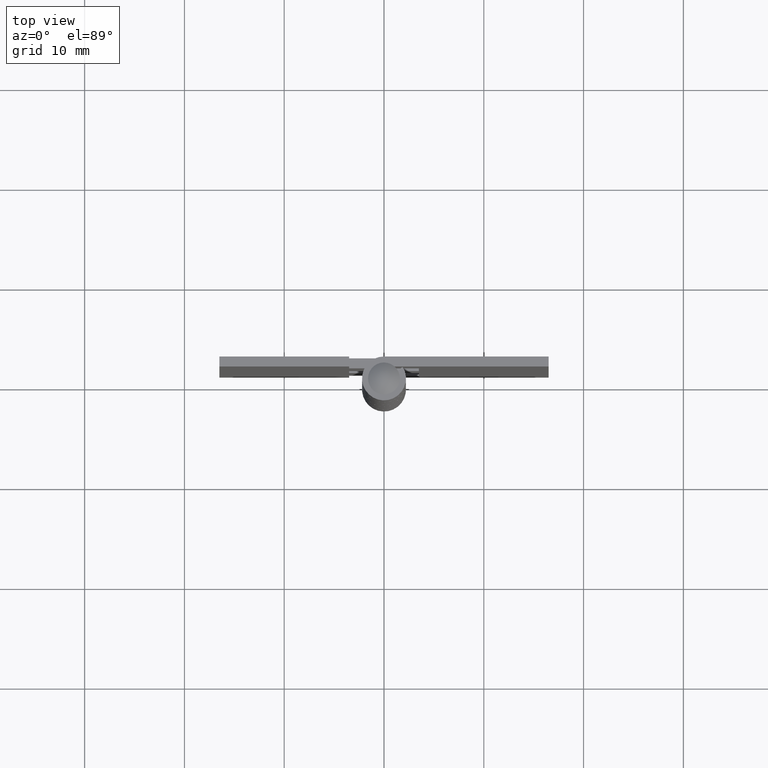
[diagram: clean part render]
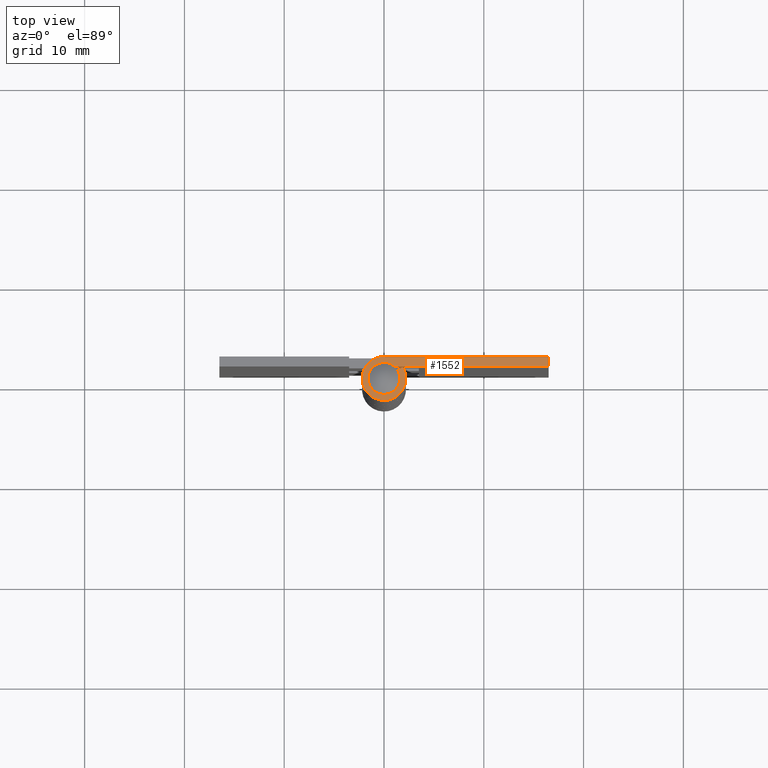
[diagram: same view with one face highlighted and labeled with its STEP entity id]
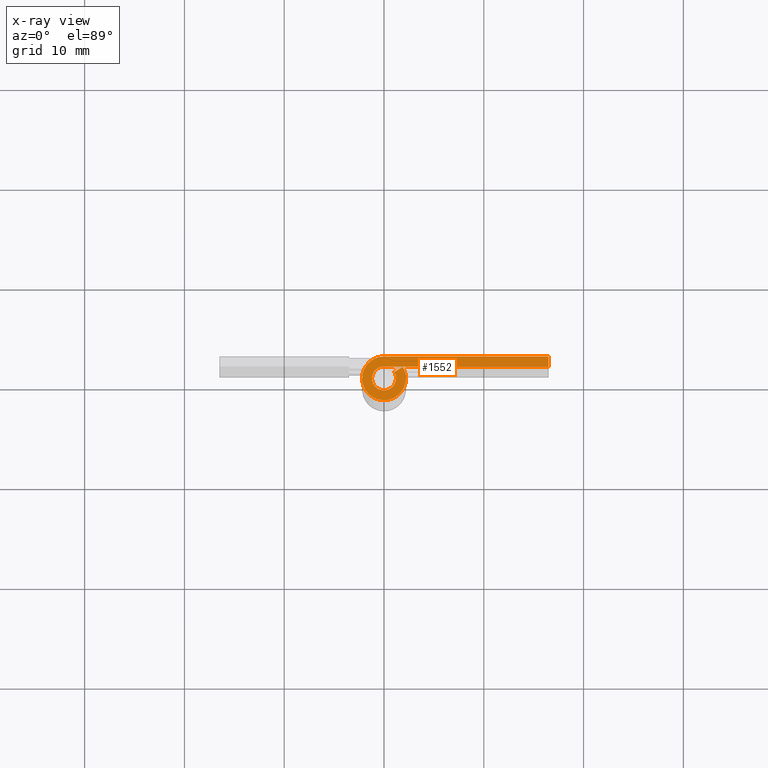
[diagram: x-ray of the same camera — body ghosted, the highlighted face saturated]
A machine part, top view. The second image highlights one B-rep face of the part: STEP entity #1552.
The next image is the same camera in x-ray: the body ghosted, the highlighted face saturated — about 0% of this face is hidden behind the body in this view.
In plain terms, the highlighted face is a freeform B-spline surface patch.
Its self-contained STEP definition (entity closure, byte-faithful):
#854=CARTESIAN_POINT('',(1.875497693946860,1.149996000000000,64.0));
#855=VERTEX_POINT('',#854);
#870=CARTESIAN_POINT('',(1.022997192151920,0.627269595042898,64.0));
#871=VERTEX_POINT('',#870);
#877=CARTESIAN_POINT('',(1.022997192151920,0.627269595042898,64.0));
#878=CARTESIAN_POINT('',(1.875497693946860,1.149996000000000,64.0));
#879=QUASI_UNIFORM_CURVE('',1,(#877,#878),.UNSPECIFIED.,.F.,.U.);
#880=EDGE_CURVE('',#871,#855,#879,.T.);
#936=CARTESIAN_POINT('',(1.421085E-014,1.199996000000000,64.0));
#937=VERTEX_POINT('',#936);
#943=CARTESIAN_POINT('',(1.022997192151920,0.627269595042898,64.0));
#944=CARTESIAN_POINT('',(1.096156771381883,0.508155094951411,63.999999999999837));
#945=CARTESIAN_POINT('',(1.187805576908185,0.275072082743146,64.000000000000369));
#946=CARTESIAN_POINT('',(1.208883311766687,-0.039475491737728,63.999999999999702));
#947=CARTESIAN_POINT('',(1.167270023603000,-0.316912113220982,64.000000000000142));
#948=CARTESIAN_POINT('',(1.069627532268047,-0.572685032831658,64.000000000000142));
#949=CARTESIAN_POINT('',(0.915205306591335,-0.788182682445386,63.999999999999652));
#950=CARTESIAN_POINT('',(0.716875539522696,-0.974395377356563,64.000000000000384));
#951=CARTESIAN_POINT('',(0.488602416994576,-1.110631500910100,63.999999999999829));
#952=CARTESIAN_POINT('',(0.226199171306221,-1.186334237589020,64.000000000000057));
#953=CARTESIAN_POINT('',(-0.020400298146820,-1.207522406579411,64.000000000000014));
#954=CARTESIAN_POINT('',(-0.316555130062991,-1.175070355569604,63.999999999999787));
#955=CARTESIAN_POINT('',(-0.616753139060748,-1.049074522507568,64.000000000001165));
#956=CARTESIAN_POINT('',(-0.866635581712340,-0.844798189931669,63.999999999999041));
#957=CARTESIAN_POINT('',(-1.018758293768180,-0.648606501487406,64.000000000002004));
#958=CARTESIAN_POINT('',(-1.129595279087340,-0.427293427957465,63.999999999996582));
#959=CARTESIAN_POINT('',(-1.199999443646807,-0.172007940153021,64.000000000002416));
#960=CARTESIAN_POINT('',(-1.205919235928050,0.093388737199175,64.000000000007574));
#961=CARTESIAN_POINT('',(-1.155129795408018,0.352466068525364,63.999999999991921));
#962=CARTESIAN_POINT('',(-1.064176308236990,0.574534360286789,64.000000000003752));
#963=CARTESIAN_POINT('',(-0.913797790199619,0.792157316176894,63.999999999998998));
#964=CARTESIAN_POINT('',(-0.720096800562546,0.972729200345032,64.000000000000256));
#965=CARTESIAN_POINT('',(-0.419208547924002,1.146750614106223,63.999999999999851));
#966=CARTESIAN_POINT('',(-0.164487641524548,1.200189736397713,64.000000000000028));
#967=CARTESIAN_POINT('',(1.421085E-014,1.199996000000000,64.0));
#968=B_SPLINE_CURVE_WITH_KNOTS('',3,(#943,#944,#945,#946,#947,#948,#949,#950,#951,#952,#953,#954,#955,#956,#957,#958,#959,#960,#961,#962,#963,#964,#965,#966,#967),.UNSPECIFIED.,.F.,.U.,(4,1,1,1,1,1,1,1,1,1,1,1,1,1,1,1,1,1,1,1,1,1,4),(0.000000570146701,0.419335557465189,0.740041935715889,0.937395087052613,1.258095772191076,1.554112917424398,1.726729917299559,2.072112444319653,2.343460705547838,2.540815667449512,2.812161094361293,3.231486842129256,3.502851555832059,3.774196982630623,3.971551944543392,4.242900205700580,4.563591361680024,4.760896847566676,5.032247202401107,5.278941775790335,5.550304801822872,5.821653062997812,6.315012039604608),.UNSPECIFIED.);
#969=EDGE_CURVE('',#871,#937,#968,.T.);
#1116=CARTESIAN_POINT('',(16.500000000000000,1.199996000000000,64.0));
#1117=VERTEX_POINT('',#1116);
#1123=CARTESIAN_POINT('',(16.500000000000000,1.199996000000000,64.0));
#1124=CARTESIAN_POINT('',(1.421085E-014,1.199996000000000,64.0));
#1125=QUASI_UNIFORM_CURVE('',1,(#1123,#1124),.UNSPECIFIED.,.F.,.U.);
#1126=EDGE_CURVE('',#1117,#937,#1125,.T.);
#1159=CARTESIAN_POINT('',(1.421085E-014,2.199996000000000,64.0));
#1160=VERTEX_POINT('',#1159);
#1198=CARTESIAN_POINT('',(1.875497693946860,1.149996000000000,64.0));
#1199=CARTESIAN_POINT('',(1.954313120276287,1.021497480211239,63.999999999999993));
#1200=CARTESIAN_POINT('',(2.078807321992795,0.761878708655950,64.000000000000028));
#1201=CARTESIAN_POINT('',(2.195855366967291,0.307385900173883,63.999999999999943));
#1202=CARTESIAN_POINT('',(2.214569787718320,-0.208737887489637,64.000000000000085));
#1203=CARTESIAN_POINT('',(2.104590967405056,-0.698472760566563,64.000000000000099));
#1204=CARTESIAN_POINT('',(1.906247899011316,-1.123362527962829,63.999999999999787));
#1205=CARTESIAN_POINT('',(1.694443190056977,-1.419017283598254,64.000000000000355));
#1206=CARTESIAN_POINT('',(1.416564908872919,-1.696464925515350,64.000000000000071));
#1207=CARTESIAN_POINT('',(1.046660936333276,-1.960788551560484,64.000000000000455));
#1208=CARTESIAN_POINT('',(0.536141199462264,-2.160895081604356,63.999999999997627));
#1209=CARTESIAN_POINT('',(-0.068058252981138,-2.225345571813086,64.000000000001776));
#1210=CARTESIAN_POINT('',(-0.609284180778044,-2.137509343011953,63.999999999999012));
#1211=CARTESIAN_POINT('',(-1.137992174104587,-1.909191872271379,64.000000000000739));
#1212=CARTESIAN_POINT('',(-1.548878623911345,-1.594076777840761,64.0));
#1213=CARTESIAN_POINT('',(-1.906445404062480,-1.142612820866705,63.999999999998963));
#1214=CARTESIAN_POINT('',(-2.119134123397906,-0.670443376849930,64.000000000002970));
#1215=CARTESIAN_POINT('',(-2.198863586482754,-0.222827985295082,63.999999999995183));
#1216=CARTESIAN_POINT('',(-2.203611419460675,0.169831104760486,64.000000000005841));
#1217=CARTESIAN_POINT('',(-2.152989776930886,0.499346282460204,63.999999999995246));
#1218=CARTESIAN_POINT('',(-2.030642268512418,0.872479064246781,64.000000000002331));
#1219=CARTESIAN_POINT('',(-1.862275041007769,1.194856329610512,63.999999999999368));
#1220=CARTESIAN_POINT('',(-1.581802471117063,1.551584759448459,64.000000000000099));
#1221=CARTESIAN_POINT('',(-1.186486806374875,1.883948071299297,63.999999999999417));
#1222=CARTESIAN_POINT('',(-0.633091680619647,2.138805566000633,64.000000000002487));
#1223=CARTESIAN_POINT('',(-0.211045724434727,2.200080345331676,63.999999999995197));
#1224=CARTESIAN_POINT('',(1.421085E-014,2.199996000000000,64.0));
#1225=B_SPLINE_CURVE_WITH_KNOTS('',3,(#1198,#1199,#1200,#1201,#1202,#1203,#1204,#1205,#1206,#1207,#1208,#1209,#1210,#1211,#1212,#1213,#1214,#1215,#1216,#1217,#1218,#1219,#1220,#1221,#1222,#1223,#1224),.UNSPECIFIED.,.F.,.U.,(4,1,1,1,1,1,1,1,1,1,1,1,1,1,1,1,1,1,1,1,1,1,1,1,4),(0.000000077843977,0.452234280862964,0.859256757883088,1.401968614064982,1.989898777411183,2.351712335609932,2.803936711289797,3.075271957944946,3.527508427567090,4.160676686305532,4.703387127085114,5.336552003452772,5.788769831575492,6.421893318902480,6.874152535970636,7.507315973229193,7.959571325239321,8.230936894797740,8.683154722890784,8.954483402297853,9.406738120509694,9.768537427309736,10.311247868074529,10.944416126838810,11.577539614206110),.UNSPECIFIED.);
#1226=EDGE_CURVE('',#855,#1160,#1225,.T.);
#1529=CARTESIAN_POINT('',(-3.133988353685613,-2.419733140213638,64.0));
#1530=CARTESIAN_POINT('',(17.434061820703000,-2.419733140213638,64.0));
#1531=CARTESIAN_POINT('',(-3.133988353685613,2.419773690299824,64.0));
#1532=CARTESIAN_POINT('',(17.434061820703000,2.419773690299825,64.0));
#1533=B_SPLINE_SURFACE_WITH_KNOTS('',1,1,((#1529,#1531),(#1530,#1532)),.UNSPECIFIED.,.F.,.F.,.U.,(2,2),(2,2),(0.0,20.568050174388610),(0.0,4.839506830513463),.UNSPECIFIED.);
#1534=ORIENTED_EDGE('',*,*,#1226,.F.);
#1535=ORIENTED_EDGE('',*,*,#880,.F.);
#1536=ORIENTED_EDGE('',*,*,#969,.T.);
#1537=ORIENTED_EDGE('',*,*,#1126,.F.);
#1538=CARTESIAN_POINT('',(16.500000000000000,2.199996000000000,64.0));
#1539=VERTEX_POINT('',#1538);
#1540=CARTESIAN_POINT('',(16.500000000000000,2.199996000000000,64.0));
#1541=CARTESIAN_POINT('',(16.500000000000000,1.199996000000000,64.0));
#1542=QUASI_UNIFORM_CURVE('',1,(#1540,#1541),.UNSPECIFIED.,.F.,.U.);
#1543=EDGE_CURVE('',#1539,#1117,#1542,.T.);
#1544=ORIENTED_EDGE('',*,*,#1543,.F.);
#1545=CARTESIAN_POINT('',(1.421085E-014,2.199996000000000,64.0));
#1546=CARTESIAN_POINT('',(16.500000000000000,2.199996000000000,64.0));
#1547=QUASI_UNIFORM_CURVE('',1,(#1545,#1546),.UNSPECIFIED.,.F.,.U.);
#1548=EDGE_CURVE('',#1160,#1539,#1547,.T.);
#1549=ORIENTED_EDGE('',*,*,#1548,.F.);
#1550=EDGE_LOOP('',(#1534,#1535,#1536,#1537,#1544,#1549));
#1551=FACE_OUTER_BOUND('',#1550,.T.);
#1552=ADVANCED_FACE('',(#1551),#1533,.T.);